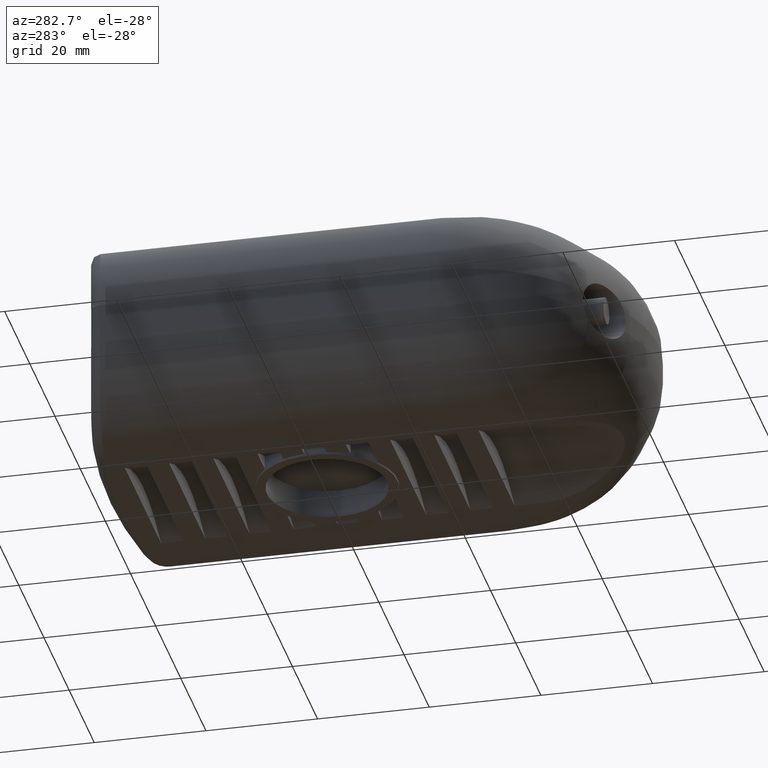
[diagram: clean part render]
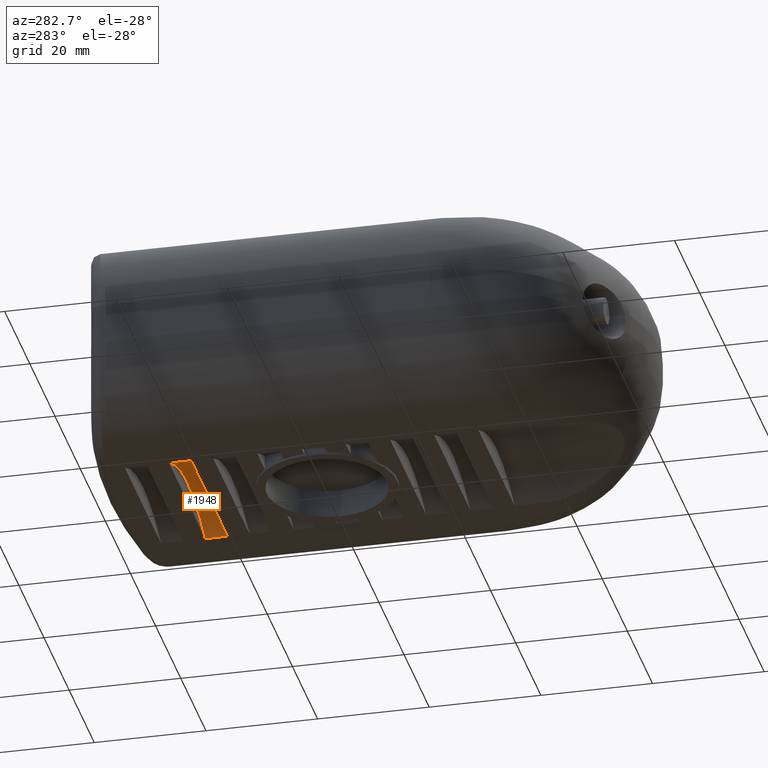
[diagram: same view with one face highlighted and labeled with its STEP entity id]
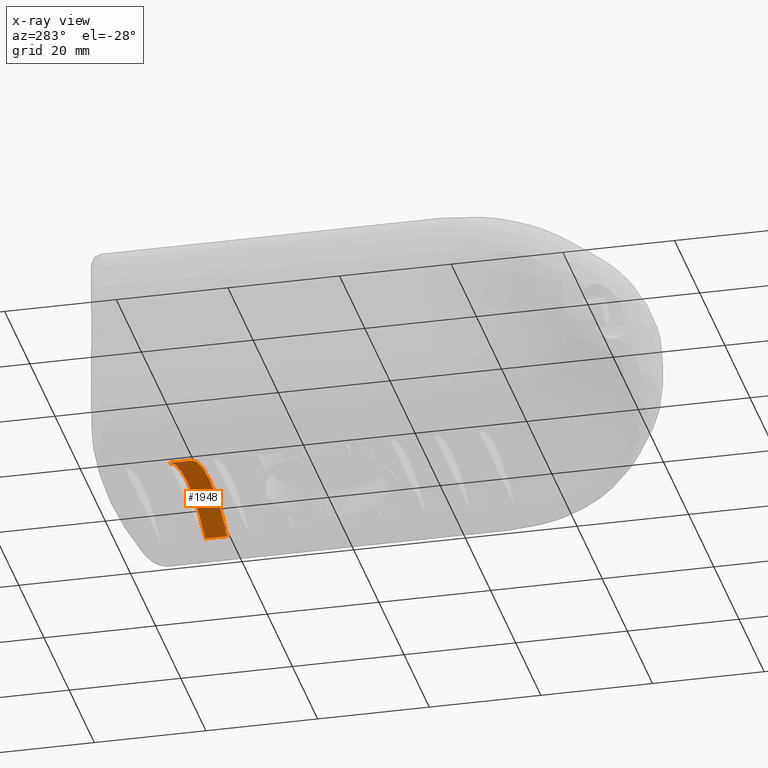
[diagram: x-ray of the same camera — body ghosted, the highlighted face saturated]
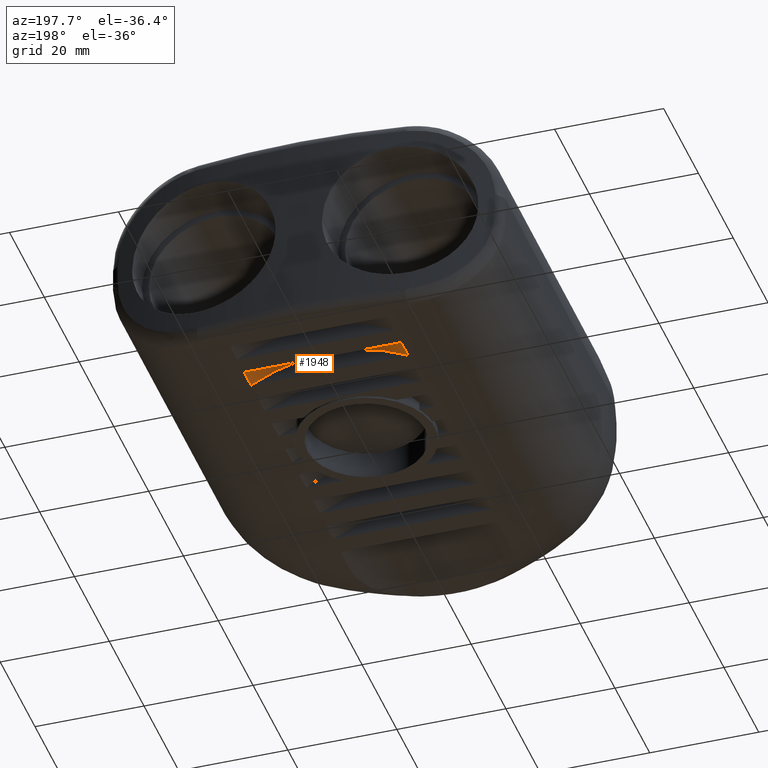
[diagram: same view with one face highlighted and labeled with its STEP entity id]
A machine part, auxiliary view. The second image highlights one B-rep face of the part: STEP entity #1948.
The next image is the same camera in x-ray: the body ghosted, the highlighted face saturated — about 0% of this face is hidden behind the body in this view.
A second angle (auxiliary view) of the same face is appended — the face is thin or edge-on in the first view.
In plain terms, the highlighted cylindrical surface (partial cylindrical patch) has radius 29.1842 mm, axis along (0, -1, 0).
Its self-contained STEP definition (entity closure, byte-faithful):
#30=LINE('',#3240,#152);
#32=LINE('',#3244,#154);
#152=VECTOR('',#2389,3.95999999999999);
#154=VECTOR('',#2391,3.95999999999999);
#459=FACE_OUTER_BOUND('',#610,.T.);
#610=EDGE_LOOP('',(#1494,#1495,#1496,#1497));
#755=CIRCLE('',#2124,29.1842105263158);
#756=CIRCLE('',#2125,29.1842105263158);
#875=VERTEX_POINT('',#3238);
#876=VERTEX_POINT('',#3239);
#877=VERTEX_POINT('',#3241);
#878=VERTEX_POINT('',#3243);
#1073=EDGE_CURVE('',#875,#876,#30,.T.);
#1075=EDGE_CURVE('',#877,#878,#32,.T.);
#1142=EDGE_CURVE('',#877,#876,#755,.T.);
#1143=EDGE_CURVE('',#878,#875,#756,.T.);
#1494=ORIENTED_EDGE('',*,*,#1142,.T.);
#1495=ORIENTED_EDGE('',*,*,#1073,.F.);
#1496=ORIENTED_EDGE('',*,*,#1143,.F.);
#1497=ORIENTED_EDGE('',*,*,#1075,.F.);
#1875=CYLINDRICAL_SURFACE('',#2123,29.1842105263158);
#1948=ADVANCED_FACE('',(#459),#1875,.F.);
#2123=AXIS2_PLACEMENT_3D('',#3412,#2503,#2504);
#2124=AXIS2_PLACEMENT_3D('',#3413,#2505,#2506);
#2125=AXIS2_PLACEMENT_3D('',#3414,#2507,#2508);
#2389=DIRECTION('',(0.,-1.,0.));
#2391=DIRECTION('',(0.,1.,0.));
#2503=DIRECTION('center_axis',(0.,-1.,0.));
#2504=DIRECTION('ref_axis',(0.493417493237151,0.,-0.869792605951307));
#2505=DIRECTION('center_axis',(9.75260917545092E-18,-1.,-2.87348747702576E-31));
#2506=DIRECTION('ref_axis',(0.493417493237151,4.81210797187288E-18,-0.869792605951307));
#2507=DIRECTION('center_axis',(9.75260917545092E-18,-1.,-2.87348747702576E-31));
#2508=DIRECTION('ref_axis',(0.493417493237151,4.81210797187288E-18,-0.869792605951307));
#3238=CARTESIAN_POINT('',(-14.4,65.34,-19.));
#3239=CARTESIAN_POINT('',(-14.4,61.38,-19.));
#3240=CARTESIAN_POINT('',(-14.4,61.38,-19.));
#3241=CARTESIAN_POINT('',(14.4,61.38,-19.));
#3243=CARTESIAN_POINT('',(14.4,65.34,-19.));
#3244=CARTESIAN_POINT('',(14.4,61.38,-19.));
#3412=CARTESIAN_POINT('Origin',(-3.86203323347857E-17,61.38,-44.3842105263158));
#3413=CARTESIAN_POINT('Origin',(-3.86203323347857E-17,61.38,-44.3842105263158));
#3414=CARTESIAN_POINT('Origin',(-3.86203323347857E-17,65.34,-44.3842105263158));